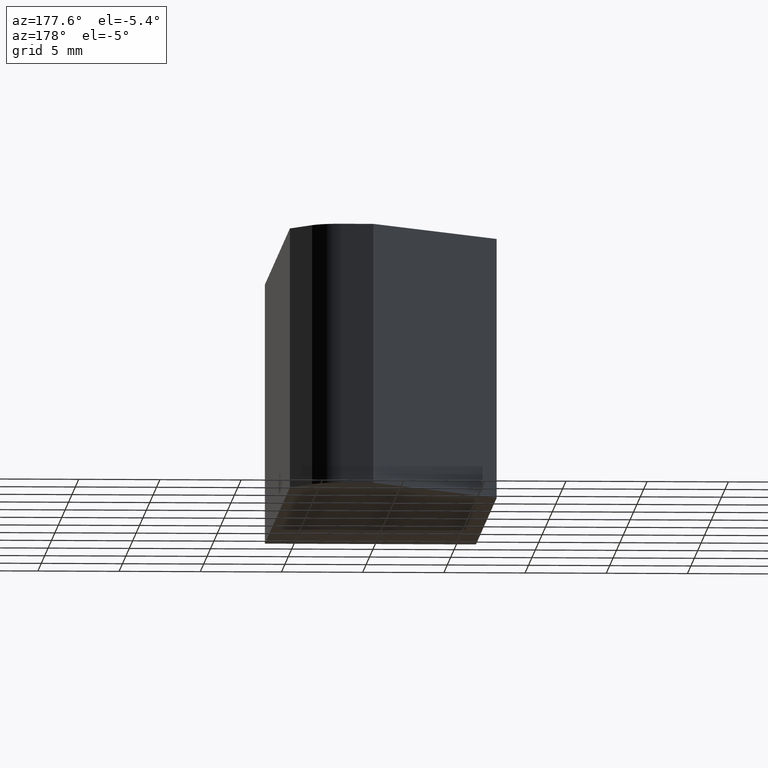
[diagram: clean part render]
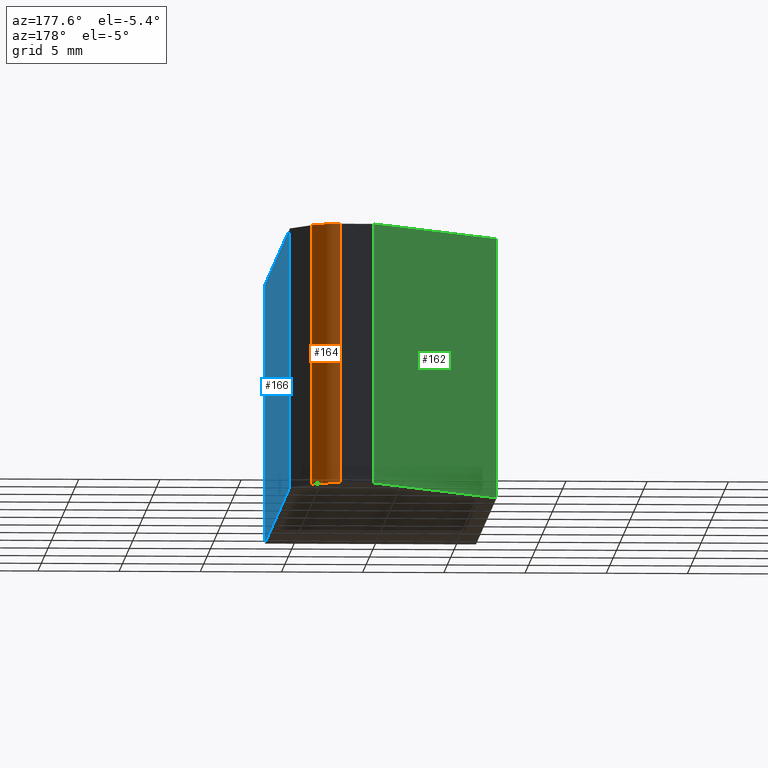
[diagram: same view with three faces highlighted in distinct colors, each labeled with its STEP entity id]
A machine part, auxiliary view with three faces highlighted in distinct colors.
Their STEP definitions:

[orange] entity #164 — the highlighted cylindrical surface (edge-blend (fillet) strip) has radius 2 mm, axis along (0, 0, 1).
#16=CYLINDRICAL_SURFACE('',#197,2.00000000000001);
#21=FACE_OUTER_BOUND('',#30,.T.);
#30=EDGE_LOOP('',(#129,#130,#131,#132));
#35=CIRCLE('',#193,2.00000000000001);
#36=CIRCLE('',#198,2.00000000000001);
#49=LINE('',#275,#68);
#50=LINE('',#279,#69);
#68=VECTOR('',#227,10.);
#69=VECTOR('',#232,10.);
#79=VERTEX_POINT('',#255);
#80=VERTEX_POINT('',#257);
#85=VERTEX_POINT('',#273);
#86=VERTEX_POINT('',#277);
#93=EDGE_CURVE('',#80,#79,#35,.T.);
#102=EDGE_CURVE('',#85,#79,#49,.T.);
#103=EDGE_CURVE('',#85,#86,#36,.T.);
#104=EDGE_CURVE('',#86,#80,#50,.T.);
#129=ORIENTED_EDGE('',*,*,#103,.T.);
#130=ORIENTED_EDGE('',*,*,#104,.T.);
#131=ORIENTED_EDGE('',*,*,#93,.T.);
#132=ORIENTED_EDGE('',*,*,#102,.F.);
#164=ADVANCED_FACE('',(#21),#16,.T.);
#193=AXIS2_PLACEMENT_3D('',#258,#211,#212);
#197=AXIS2_PLACEMENT_3D('',#276,#228,#229);
#198=AXIS2_PLACEMENT_3D('',#278,#230,#231);
#211=DIRECTION('center_axis',(0.,0.,1.));
#212=DIRECTION('ref_axis',(-0.866025403784439,-0.5,0.));
#227=DIRECTION('',(0.,0.,-1.));
#228=DIRECTION('center_axis',(0.,0.,1.));
#229=DIRECTION('ref_axis',(-0.866025403784439,-0.5,0.));
#230=DIRECTION('center_axis',(0.,0.,-1.));
#231=DIRECTION('ref_axis',(-0.866025403784439,-0.5,0.));
#232=DIRECTION('',(0.,0.,-1.));
#255=CARTESIAN_POINT('',(3.49661948511947,26.3400590049251,-8.));
#257=CARTESIAN_POINT('',(5.22867029268835,25.3400590049251,-8.));
#258=CARTESIAN_POINT('Origin',(3.49661948511947,24.3400590049251,-8.));
#273=CARTESIAN_POINT('',(3.49661948511947,26.3400590049251,8.));
#275=CARTESIAN_POINT('',(3.49661948511947,26.3400590049251,0.));
#276=CARTESIAN_POINT('Origin',(3.49661948511947,24.3400590049251,0.));
#277=CARTESIAN_POINT('',(5.22867029268835,25.3400590049251,8.));
#278=CARTESIAN_POINT('Origin',(3.49661948511947,24.3400590049251,8.));
#279=CARTESIAN_POINT('',(5.22867029268835,25.3400590049251,0.));

[blue] entity #166 — the highlighted planar face has unit normal (1, -0, 0).
#23=FACE_OUTER_BOUND('',#32,.T.);
#32=EDGE_LOOP('',(#137,#138,#139,#140));
#42=LINE('',#261,#61);
#52=LINE('',#283,#71);
#53=LINE('',#286,#72);
#54=LINE('',#287,#73);
#61=VECTOR('',#214,10.);
#71=VECTOR('',#236,10.);
#72=VECTOR('',#239,10.);
#73=VECTOR('',#240,10.);
#76=VERTEX_POINT('',#249);
#81=VERTEX_POINT('',#259);
#87=VERTEX_POINT('',#281);
#88=VERTEX_POINT('',#285);
#95=EDGE_CURVE('',#76,#81,#42,.T.);
#106=EDGE_CURVE('',#87,#81,#52,.T.);
#107=EDGE_CURVE('',#87,#88,#53,.T.);
#108=EDGE_CURVE('',#88,#76,#54,.T.);
#137=ORIENTED_EDGE('',*,*,#107,.T.);
#138=ORIENTED_EDGE('',*,*,#108,.T.);
#139=ORIENTED_EDGE('',*,*,#95,.T.);
#140=ORIENTED_EDGE('',*,*,#106,.F.);
#157=PLANE('',#200);
#166=ADVANCED_FACE('',(#23),#157,.T.);
#200=AXIS2_PLACEMENT_3D('',#284,#237,#238);
#214=DIRECTION('',(1.50853749567614E-16,1.,0.));
#236=DIRECTION('',(0.,0.,-1.));
#237=DIRECTION('center_axis',(1.,-1.50853749567614E-16,0.));
#238=DIRECTION('ref_axis',(0.,0.,-1.));
#239=DIRECTION('',(-1.50853749567614E-16,-1.,0.));
#240=DIRECTION('',(0.,0.,-1.));
#249=CARTESIAN_POINT('',(6.5,-13.6599409950749,-8.));
#259=CARTESIAN_POINT('',(6.5,23.1380513586897,-8.));
#261=CARTESIAN_POINT('',(6.5,23.1380513586897,-8.));
#281=CARTESIAN_POINT('',(6.5,23.1380513586897,8.));
#283=CARTESIAN_POINT('',(6.5,23.1380513586897,0.));
#284=CARTESIAN_POINT('Origin',(6.5,23.1380513586897,0.));
#285=CARTESIAN_POINT('',(6.5,-13.6599409950749,8.));
#286=CARTESIAN_POINT('',(6.5,23.1380513586897,8.));
#287=CARTESIAN_POINT('',(6.5,-13.6599409950749,0.));

[green] entity #162 — the highlighted planar face has unit normal (-0.766, 0.6428, 0).
#19=FACE_OUTER_BOUND('',#28,.T.);
#28=EDGE_LOOP('',(#121,#122,#123,#124));
#39=LINE('',#254,#58);
#44=LINE('',#266,#63);
#46=LINE('',#270,#65);
#47=LINE('',#271,#66);
#58=VECTOR('',#209,10.);
#63=VECTOR('',#218,10.);
#65=VECTOR('',#222,10.);
#66=VECTOR('',#223,10.);
#77=VERTEX_POINT('',#251);
#78=VERTEX_POINT('',#253);
#83=VERTEX_POINT('',#264);
#84=VERTEX_POINT('',#269);
#91=EDGE_CURVE('',#78,#77,#39,.T.);
#97=EDGE_CURVE('',#83,#77,#44,.T.);
#99=EDGE_CURVE('',#83,#84,#46,.T.);
#100=EDGE_CURVE('',#84,#78,#47,.T.);
#121=ORIENTED_EDGE('',*,*,#99,.T.);
#122=ORIENTED_EDGE('',*,*,#100,.T.);
#123=ORIENTED_EDGE('',*,*,#91,.T.);
#124=ORIENTED_EDGE('',*,*,#97,.F.);
#154=PLANE('',#195);
#162=ADVANCED_FACE('',(#19),#154,.T.);
#195=AXIS2_PLACEMENT_3D('',#268,#220,#221);
#209=DIRECTION('',(-0.642787609686539,-0.766044443118978,0.));
#218=DIRECTION('',(0.,0.,-1.));
#220=DIRECTION('center_axis',(-0.766044443118978,0.642787609686539,0.));
#221=DIRECTION('ref_axis',(0.,0.,1.));
#222=DIRECTION('',(0.642787609686539,0.766044443118978,0.));
#223=DIRECTION('',(0.,0.,-1.));
#251=CARTESIAN_POINT('',(-6.5,16.8100590049251,-8.));
#253=CARTESIAN_POINT('',(1.49661948511947,26.3400590049251,-8.));
#254=CARTESIAN_POINT('',(-6.5,16.8100590049251,-8.));
#264=CARTESIAN_POINT('',(-6.5,16.8100590049251,8.));
#266=CARTESIAN_POINT('',(-6.5,16.8100590049251,0.));
#268=CARTESIAN_POINT('Origin',(-6.5,16.8100590049251,0.));
#269=CARTESIAN_POINT('',(1.49661948511947,26.3400590049251,8.));
#270=CARTESIAN_POINT('',(-6.5,16.8100590049251,8.));
#271=CARTESIAN_POINT('',(1.49661948511947,26.3400590049251,0.));